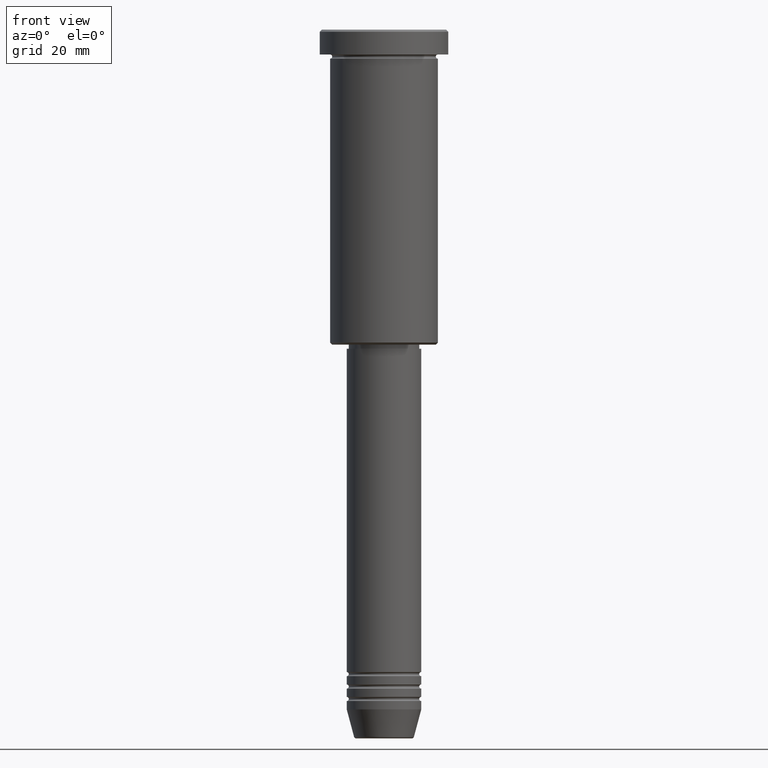
[diagram: clean part render]
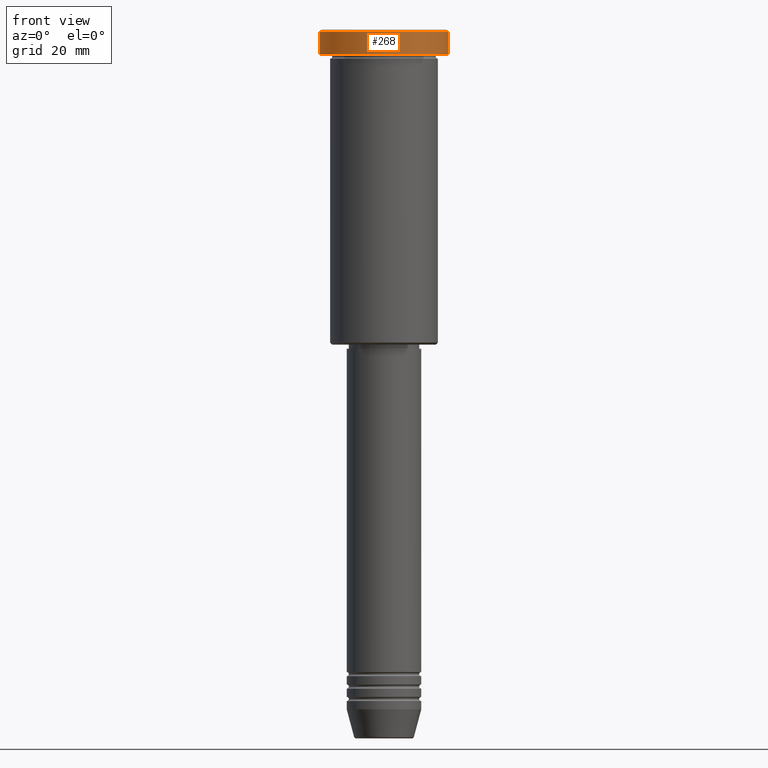
[diagram: same view with one face highlighted and labeled with its STEP entity id]
A machine part, front view. The second image highlights one B-rep face of the part: STEP entity #268.
In plain terms, the highlighted cylindrical surface (partial cylindrical patch) has radius 15.5 mm, axis along (-0, -0, 1).
Its self-contained STEP definition (entity closure, byte-faithful):
#14 = LINE ( 'NONE', #724, #961 ) ;
#125 = CARTESIAN_POINT ( 'NONE',  ( 15.50000000000000000, 0.000000000000000000, -5.999999999999995559 ) ) ;
#150 = CIRCLE ( 'NONE', #801, 15.50000000000000000 ) ;
#170 = ORIENTED_EDGE ( 'NONE', *, *, #767, .T. ) ;
#181 = VERTEX_POINT ( 'NONE', #968 ) ;
#206 = CARTESIAN_POINT ( 'NONE',  ( 15.50000000000000000, 0.000000000000000000, -0.5000000000000125455 ) ) ;
#228 = EDGE_LOOP ( 'NONE', ( #705, #828, #170, #250 ) ) ;
#250 = ORIENTED_EDGE ( 'NONE', *, *, #554, .T. ) ;
#252 = CARTESIAN_POINT ( 'NONE',  ( 0.000000000000000000, 0.000000000000000000, 0.000000000000000000 ) ) ;
#268 = ADVANCED_FACE ( 'NONE', ( #982 ), #703, .T. ) ;
#273 = DIRECTION ( 'NONE',  ( -0.000000000000000000, -0.000000000000000000, 1.000000000000000000 ) ) ;
#280 = CIRCLE ( 'NONE', #524, 15.50000000000000000 ) ;
#321 = EDGE_CURVE ( 'NONE', #181, #905, #280, .T. ) ;
#329 = DIRECTION ( 'NONE',  ( 1.000000000000000000, 0.000000000000000000, 0.000000000000000000 ) ) ;
#354 = DIRECTION ( 'NONE',  ( -0.000000000000000000, -0.000000000000000000, 1.000000000000000000 ) ) ;
#398 = EDGE_CURVE ( 'NONE', #181, #1053, #14, .T. ) ;
#408 = VECTOR ( 'NONE', #354, 1000.000000000000000 ) ;
#524 = AXIS2_PLACEMENT_3D ( 'NONE', #794, #691, #603 ) ;
#534 = DIRECTION ( 'NONE',  ( 1.000000000000000000, 0.000000000000000000, 0.000000000000000000 ) ) ;
#554 = EDGE_CURVE ( 'NONE', #1181, #1053, #150, .T. ) ;
#603 = DIRECTION ( 'NONE',  ( 1.000000000000000000, 0.000000000000000000, 0.000000000000000000 ) ) ;
#638 = DIRECTION ( 'NONE',  ( -0.000000000000000000, -0.000000000000000000, 1.000000000000000000 ) ) ;
#691 = DIRECTION ( 'NONE',  ( -0.000000000000000000, -0.000000000000000000, 1.000000000000000000 ) ) ;
#703 = CYLINDRICAL_SURFACE ( 'NONE', #1058, 15.50000000000000000 ) ;
#705 = ORIENTED_EDGE ( 'NONE', *, *, #398, .F. ) ;
#724 = CARTESIAN_POINT ( 'NONE',  ( -15.50000000000000000, 1.898202538678397557E-15, 0.000000000000000000 ) ) ;
#767 = EDGE_CURVE ( 'NONE', #905, #1181, #886, .T. ) ;
#772 = CARTESIAN_POINT ( 'NONE',  ( 0.000000000000000000, 0.000000000000000000, -0.5000000000000125455 ) ) ;
#794 = CARTESIAN_POINT ( 'NONE',  ( 0.000000000000000000, 0.000000000000000000, -5.999999999999995559 ) ) ;
#801 = AXIS2_PLACEMENT_3D ( 'NONE', #772, #960, #329 ) ;
#828 = ORIENTED_EDGE ( 'NONE', *, *, #321, .T. ) ;
#886 = LINE ( 'NONE', #1165, #408 ) ;
#905 = VERTEX_POINT ( 'NONE', #125 ) ;
#960 = DIRECTION ( 'NONE',  ( 0.000000000000000000, 0.000000000000000000, -1.000000000000000000 ) ) ;
#961 = VECTOR ( 'NONE', #638, 1000.000000000000000 ) ;
#968 = CARTESIAN_POINT ( 'NONE',  ( -15.50000000000000000, 1.898202538678397557E-15, -5.999999999999995559 ) ) ;
#980 = CARTESIAN_POINT ( 'NONE',  ( -15.50000000000000000, 1.898202538678397557E-15, -0.5000000000000125455 ) ) ;
#982 = FACE_OUTER_BOUND ( 'NONE', #228, .T. ) ;
#1053 = VERTEX_POINT ( 'NONE', #980 ) ;
#1058 = AXIS2_PLACEMENT_3D ( 'NONE', #252, #273, #534 ) ;
#1165 = CARTESIAN_POINT ( 'NONE',  ( 15.50000000000000000, 0.000000000000000000, 0.000000000000000000 ) ) ;
#1181 = VERTEX_POINT ( 'NONE', #206 ) ;